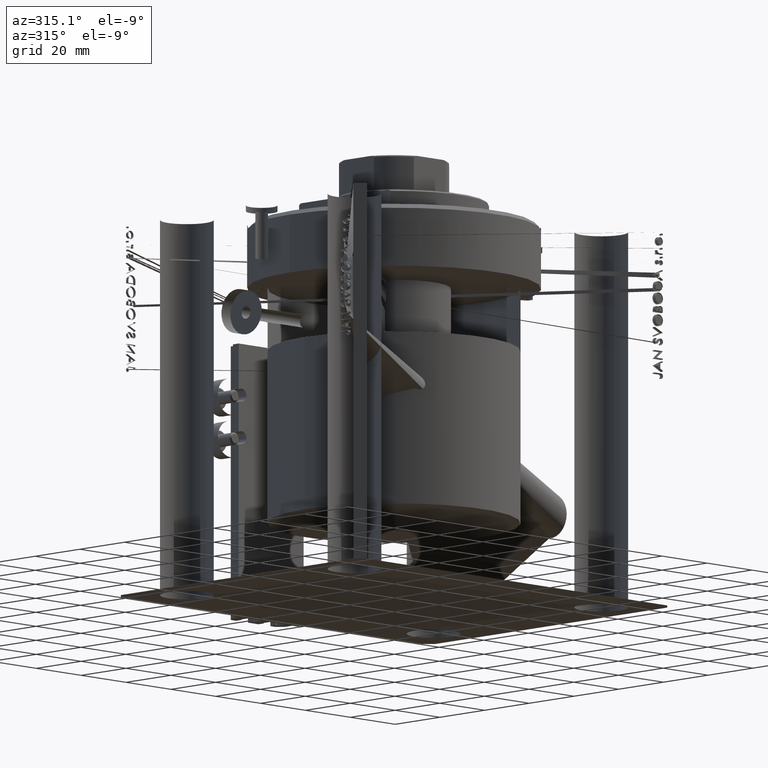
[diagram: clean part render]
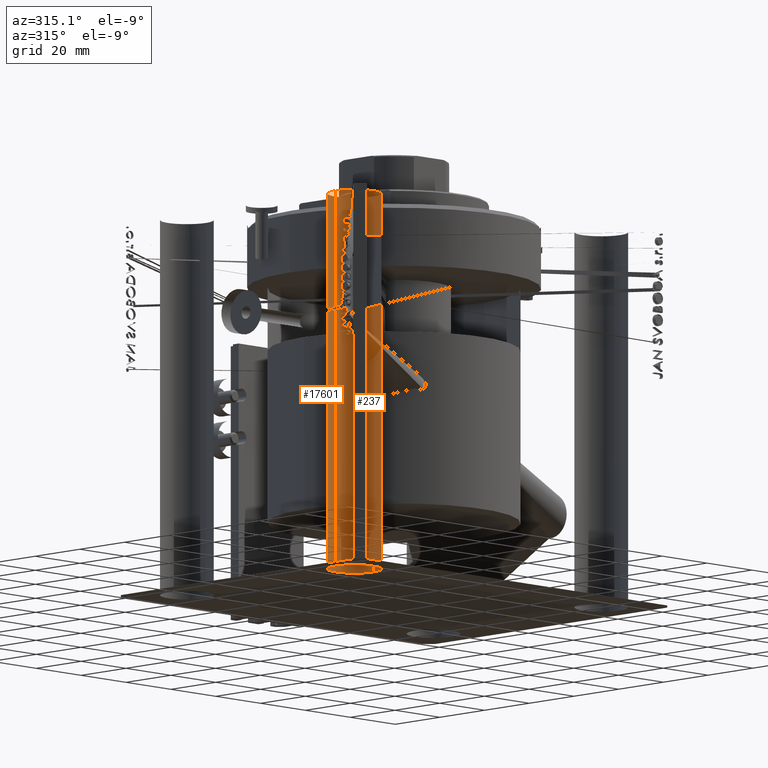
[diagram: same view with one multi-face feature highlighted, each face labeled with its STEP entity id]
A machine part, auxiliary view. The highlighted faces form ONE feature: a constant-radius fillet chain: 2 tangent blend faces with common blend radius 8.5 mm. The faces share edges in the B-rep.
Their STEP definitions:
[1] entity #17601 (Cylinder):
#374 = AXIS2_PLACEMENT_3D ( 'NONE', #3080, #25490, #42688 ) ;
#1579 = CARTESIAN_POINT ( 'NONE',  ( -46.49999999999998579, -37.50000000000000711, 0.000000000000000000 ) ) ;
#2406 = CARTESIAN_POINT ( 'NONE',  ( -54.99999999999998579, -37.50000000000000711, -144.0416305603426395 ) ) ;
#3080 = CARTESIAN_POINT ( 'NONE',  ( -54.99999999999998579, -37.50000000000000711, 0.000000000000000000 ) ) ;
#3101 = VERTEX_POINT ( 'NONE', #18633 ) ;
#3763 = LINE ( 'NONE', #21424, #46844 ) ;
#9225 = ORIENTED_EDGE ( 'NONE', *, *, #14100, .T. ) ;
#11834 = DIRECTION ( 'NONE',  ( -0.000000000000000000, -0.000000000000000000, -1.000000000000000000 ) ) ;
#13393 = FACE_OUTER_BOUND ( 'NONE', #25733, .T. ) ;
#14100 = EDGE_CURVE ( 'NONE', #39366, #14245, #3763, .T. ) ;
#14245 = VERTEX_POINT ( 'NONE', #1579 ) ;
#14697 = ORIENTED_EDGE ( 'NONE', *, *, #46384, .T. ) ;
#17040 = DIRECTION ( 'NONE',  ( -0.000000000000000000, -0.000000000000000000, 1.000000000000000000 ) ) ;
#17350 = CARTESIAN_POINT ( 'NONE',  ( -54.99999999999998579, -37.50000000000000711, -120.0000000000000000 ) ) ;
#17601 = ADVANCED_FACE ( 'NONE', ( #13393 ), #45593, .F. ) ;
#18633 = CARTESIAN_POINT ( 'NONE',  ( -63.49999999999998579, -37.50000000000000711, -120.0000000000000000 ) ) ;
#19531 = VECTOR ( 'NONE', #17040, 1000.000000000000000 ) ;
#20059 = DIRECTION ( 'NONE',  ( -0.000000000000000000, -0.000000000000000000, 1.000000000000000000 ) ) ;
#21094 = CIRCLE ( 'NONE', #25689, 8.500000000000000000 ) ;
#21288 = AXIS2_PLACEMENT_3D ( 'NONE', #2406, #20059, #41790 ) ;
#21424 = CARTESIAN_POINT ( 'NONE',  ( -46.49999999999998579, -37.50000000000000711, -144.0416305603426395 ) ) ;
#22645 = CARTESIAN_POINT ( 'NONE',  ( -46.49999999999998579, -37.50000000000000711, -120.0000000000000000 ) ) ;
#24214 = CARTESIAN_POINT ( 'NONE',  ( -63.49999999999998579, -37.50000000000000711, -144.0416305603426395 ) ) ;
#25490 = DIRECTION ( 'NONE',  ( 0.000000000000000000, 0.000000000000000000, 1.000000000000000000 ) ) ;
#25689 = AXIS2_PLACEMENT_3D ( 'NONE', #17350, #11834, #40708 ) ;
#25733 = EDGE_LOOP ( 'NONE', ( #37725, #14697, #9225, #33391 ) ) ;
#27794 = CIRCLE ( 'NONE', #374, 8.500000000000000000 ) ;
#33391 = ORIENTED_EDGE ( 'NONE', *, *, #36736, .T. ) ;
#36736 = EDGE_CURVE ( 'NONE', #14245, #45921, #27794, .T. ) ;
#37232 = CARTESIAN_POINT ( 'NONE',  ( -63.49999999999998579, -37.50000000000000711, 0.000000000000000000 ) ) ;
#37725 = ORIENTED_EDGE ( 'NONE', *, *, #44253, .F. ) ;
#39366 = VERTEX_POINT ( 'NONE', #22645 ) ;
#39802 = DIRECTION ( 'NONE',  ( -0.000000000000000000, -0.000000000000000000, 1.000000000000000000 ) ) ;
#40708 = DIRECTION ( 'NONE',  ( 1.000000000000000000, 0.000000000000000000, 0.000000000000000000 ) ) ;
#41790 = DIRECTION ( 'NONE',  ( 1.000000000000000000, 0.000000000000000000, 0.000000000000000000 ) ) ;
#42688 = DIRECTION ( 'NONE',  ( 1.000000000000000000, 0.000000000000000000, 0.000000000000000000 ) ) ;
#44253 = EDGE_CURVE ( 'NONE', #3101, #45921, #46157, .T. ) ;
#45593 = CYLINDRICAL_SURFACE ( 'NONE', #21288, 8.500000000000000000 ) ;
#45921 = VERTEX_POINT ( 'NONE', #37232 ) ;
#46157 = LINE ( 'NONE', #24214, #19531 ) ;
#46384 = EDGE_CURVE ( 'NONE', #3101, #39366, #21094, .T. ) ;
#46844 = VECTOR ( 'NONE', #39802, 1000.000000000000000 ) ;
[2] entity #237 (Cylinder):
#237 = ADVANCED_FACE ( 'NONE', ( #43396 ), #14047, .F. ) ;
#1579 = CARTESIAN_POINT ( 'NONE',  ( -46.49999999999998579, -37.50000000000000711, 0.000000000000000000 ) ) ;
#3101 = VERTEX_POINT ( 'NONE', #18633 ) ;
#3207 = AXIS2_PLACEMENT_3D ( 'NONE', #14517, #28605, #36006 ) ;
#3653 = ORIENTED_EDGE ( 'NONE', *, *, #33454, .T. ) ;
#3763 = LINE ( 'NONE', #21424, #46844 ) ;
#5266 = DIRECTION ( 'NONE',  ( 1.000000000000000000, 0.000000000000000000, 0.000000000000000000 ) ) ;
#5774 = AXIS2_PLACEMENT_3D ( 'NONE', #27431, #45342, #5266 ) ;
#7197 = ORIENTED_EDGE ( 'NONE', *, *, #14100, .F. ) ;
#8213 = DIRECTION ( 'NONE',  ( -0.000000000000000000, -0.000000000000000000, -1.000000000000000000 ) ) ;
#12028 = DIRECTION ( 'NONE',  ( 1.000000000000000000, 0.000000000000000000, 0.000000000000000000 ) ) ;
#13989 = ORIENTED_EDGE ( 'NONE', *, *, #39262, .T. ) ;
#14047 = CYLINDRICAL_SURFACE ( 'NONE', #3207, 8.500000000000000000 ) ;
#14100 = EDGE_CURVE ( 'NONE', #39366, #14245, #3763, .T. ) ;
#14245 = VERTEX_POINT ( 'NONE', #1579 ) ;
#14517 = CARTESIAN_POINT ( 'NONE',  ( -54.99999999999998579, -37.50000000000000711, -144.0416305603426395 ) ) ;
#17040 = DIRECTION ( 'NONE',  ( -0.000000000000000000, -0.000000000000000000, 1.000000000000000000 ) ) ;
#18633 = CARTESIAN_POINT ( 'NONE',  ( -63.49999999999998579, -37.50000000000000711, -120.0000000000000000 ) ) ;
#19531 = VECTOR ( 'NONE', #17040, 1000.000000000000000 ) ;
#20070 = AXIS2_PLACEMENT_3D ( 'NONE', #27029, #8213, #12028 ) ;
#21424 = CARTESIAN_POINT ( 'NONE',  ( -46.49999999999998579, -37.50000000000000711, -144.0416305603426395 ) ) ;
#21456 = EDGE_LOOP ( 'NONE', ( #3653, #41056, #13989, #7197 ) ) ;
#22645 = CARTESIAN_POINT ( 'NONE',  ( -46.49999999999998579, -37.50000000000000711, -120.0000000000000000 ) ) ;
#24214 = CARTESIAN_POINT ( 'NONE',  ( -63.49999999999998579, -37.50000000000000711, -144.0416305603426395 ) ) ;
#27029 = CARTESIAN_POINT ( 'NONE',  ( -54.99999999999998579, -37.50000000000000711, -120.0000000000000000 ) ) ;
#27431 = CARTESIAN_POINT ( 'NONE',  ( -54.99999999999998579, -37.50000000000000711, 0.000000000000000000 ) ) ;
#28605 = DIRECTION ( 'NONE',  ( -0.000000000000000000, -0.000000000000000000, 1.000000000000000000 ) ) ;
#33454 = EDGE_CURVE ( 'NONE', #39366, #3101, #40667, .T. ) ;
#36006 = DIRECTION ( 'NONE',  ( 1.000000000000000000, 0.000000000000000000, 0.000000000000000000 ) ) ;
#37004 = CIRCLE ( 'NONE', #5774, 8.500000000000000000 ) ;
#37232 = CARTESIAN_POINT ( 'NONE',  ( -63.49999999999998579, -37.50000000000000711, 0.000000000000000000 ) ) ;
#39262 = EDGE_CURVE ( 'NONE', #45921, #14245, #37004, .T. ) ;
#39366 = VERTEX_POINT ( 'NONE', #22645 ) ;
#39802 = DIRECTION ( 'NONE',  ( -0.000000000000000000, -0.000000000000000000, 1.000000000000000000 ) ) ;
#40667 = CIRCLE ( 'NONE', #20070, 8.500000000000000000 ) ;
#41056 = ORIENTED_EDGE ( 'NONE', *, *, #44253, .T. ) ;
#43396 = FACE_OUTER_BOUND ( 'NONE', #21456, .T. ) ;
#44253 = EDGE_CURVE ( 'NONE', #3101, #45921, #46157, .T. ) ;
#45342 = DIRECTION ( 'NONE',  ( 0.000000000000000000, 0.000000000000000000, 1.000000000000000000 ) ) ;
#45921 = VERTEX_POINT ( 'NONE', #37232 ) ;
#46157 = LINE ( 'NONE', #24214, #19531 ) ;
#46844 = VECTOR ( 'NONE', #39802, 1000.000000000000000 ) ;